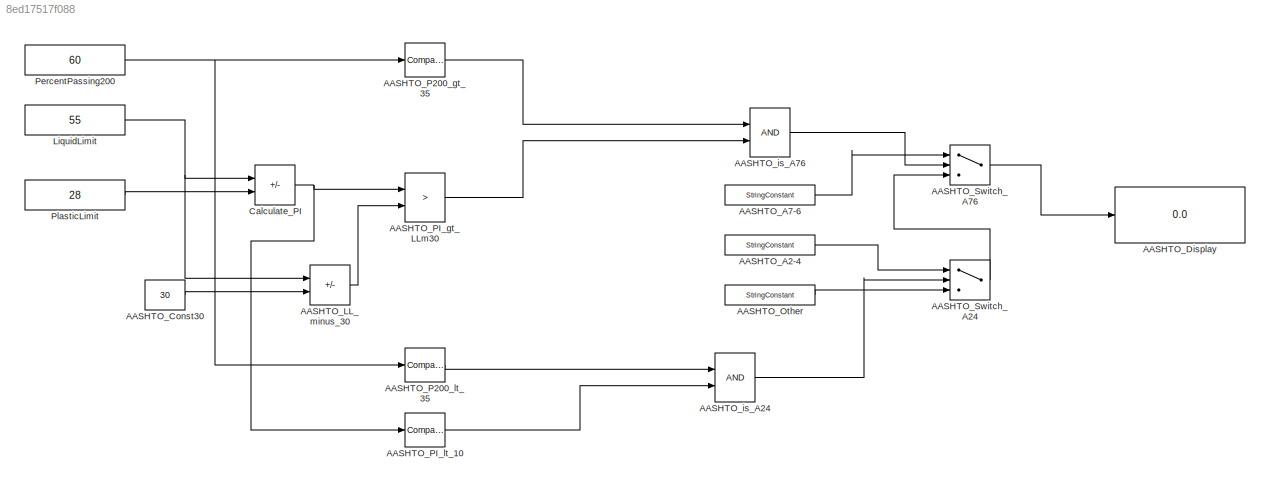
MODEL slx_8ed17517f088
KIND model
CONFIG AbsTol = auto
CONFIG EnableMultiTasking = off
CONFIG FixedStep = auto
CONFIG MaxStep = auto
CONFIG MinStep = auto
CONFIG RelTol = 1e-3
CONFIG SampleTimeConstraint = Unconstrained
CONFIG Solver = VariableStepAuto
CONFIG SolverName = VariableStepAuto
CONFIG StartTime = 0.0
CONFIG StopTime = 10.0
BLOCK [StringConstant] AASHTO_A2-4
  String = 'A-2-4'
BLOCK [StringConstant] AASHTO_A7-6
  String = 'A-7-6'
BLOCK [Constant] AASHTO_Const30
  Value = 30
BLOCK [Display] AASHTO_Display
  Decimation = 1
  Ports = [1]
BLOCK [Sum] AASHTO_LL_minus_30
  IconShape = rectangular
  Inputs = +-
  Ports = [2, 1]
BLOCK [StringConstant] AASHTO_Other
  String = 'AASHTO (Other)'
BLOCK [Reference] AASHTO_P200_gt_35  REF=simulink/Logic and Bit
Operations/Compare
To Constant
  Ports = [1, 1]
  SourceBlock = simulink/Logic and Bit\nOperations/Compare\nTo Constant
  SourceProductBaseCode = SL
  SourceType = Compare To Constant
BLOCK [Reference] AASHTO_P200_lt_35  REF=simulink/Logic and Bit
Operations/Compare
To Constant
  Ports = [1, 1]
  SourceBlock = simulink/Logic and Bit\nOperations/Compare\nTo Constant
  SourceProductBaseCode = SL
  SourceType = Compare To Constant
BLOCK [RelationalOperator] AASHTO_PI_gt_LLm30
  InputSameDT = off
  Operator = >
  OutDataTypeStr = boolean
  Ports = [2, 1]
  RndMeth = Simplest
BLOCK [Reference] AASHTO_PI_lt_10  REF=simulink/Logic and Bit
Operations/Compare
To Constant
  Ports = [1, 1]
  SourceBlock = simulink/Logic and Bit\nOperations/Compare\nTo Constant
  SourceProductBaseCode = SL
  SourceType = Compare To Constant
BLOCK [Switch] AASHTO_Switch_A24
  Criteria = u2 > Threshold
  InputSameDT = off
  SaturateOnIntegerOverflow = off
BLOCK [Switch] AASHTO_Switch_A76
  Criteria = u2 > Threshold
  InputSameDT = off
  SaturateOnIntegerOverflow = off
BLOCK [Logic] AASHTO_is_A24
  AllPortsSameDT = off
  OutDataTypeStr = boolean
  Ports = [2, 1]
BLOCK [Logic] AASHTO_is_A76
  AllPortsSameDT = off
  OutDataTypeStr = boolean
  Ports = [2, 1]
BLOCK [Sum] Calculate_PI
  IconShape = rectangular
  Inputs = +-
  Ports = [2, 1]
BLOCK [Constant] LiquidLimit
  Value = 55
BLOCK [Constant] PercentPassing200
  Value = 60
BLOCK [Constant] PlasticLimit
  Value = 28
LINE AASHTO_A2-4:1 -> AASHTO_Switch_A24:1
LINE AASHTO_A7-6:1 -> AASHTO_Switch_A76:1
LINE AASHTO_Const30:1 -> AASHTO_LL_minus_30:2
LINE AASHTO_LL_minus_30:1 -> AASHTO_PI_gt_LLm30:2
LINE AASHTO_Other:1 -> AASHTO_Switch_A24:3
LINE AASHTO_P200_gt_35:1 -> AASHTO_is_A76:1
LINE AASHTO_P200_lt_35:1 -> AASHTO_is_A24:1
LINE AASHTO_PI_gt_LLm30:1 -> AASHTO_is_A76:2
LINE AASHTO_PI_lt_10:1 -> AASHTO_is_A24:2
LINE AASHTO_Switch_A24:1 -> AASHTO_Switch_A76:3
LINE AASHTO_Switch_A76:1 -> AASHTO_Display:1
LINE AASHTO_is_A24:1 -> AASHTO_Switch_A24:2
LINE AASHTO_is_A76:1 -> AASHTO_Switch_A76:2
NET Calculate_PI:1 -> AASHTO_PI_gt_LLm30:1, AASHTO_PI_lt_10:1
NET LiquidLimit:1 -> AASHTO_LL_minus_30:1, Calculate_PI:1
NET PercentPassing200:1 -> AASHTO_P200_gt_35:1, AASHTO_P200_lt_35:1
LINE PlasticLimit:1 -> Calculate_PI:2
note: NET lines group one-source signal fan-out (src -> all destinations, sorted); 1:1 wires keep LINE
